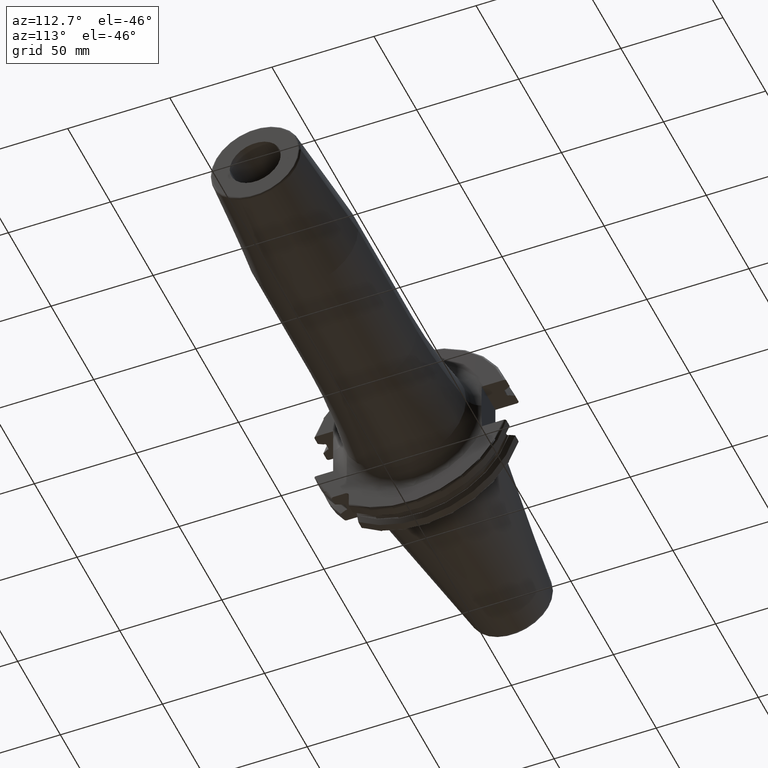
[diagram: clean part render]
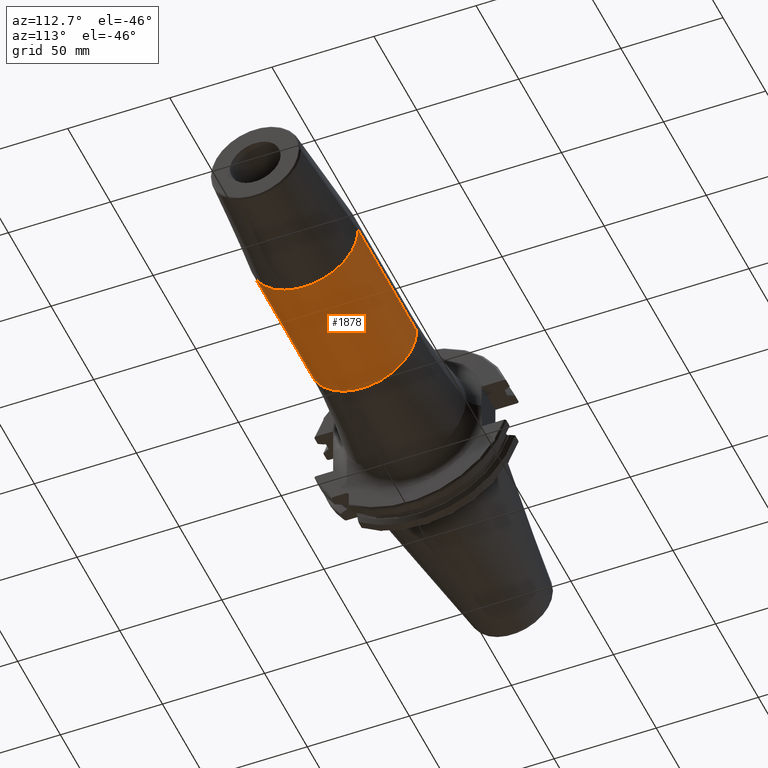
[diagram: same view with one face highlighted and labeled with its STEP entity id]
A machine part, auxiliary view. The second image highlights one B-rep face of the part: STEP entity #1878.
In plain terms, the highlighted cylindrical surface (partial cylindrical patch) has radius 26.5 mm, axis along (1, 0, 0).
Its self-contained STEP definition (entity closure, byte-faithful):
#250=CARTESIAN_POINT('',(7.405E1,0.E0,0.E0));
#251=DIRECTION('',(1.E0,0.E0,0.E0));
#252=DIRECTION('',(0.E0,-1.E0,0.E0));
#253=AXIS2_PLACEMENT_3D('',#250,#251,#252);
#255=DIRECTION('',(-1.E0,0.E0,0.E0));
#256=VECTOR('',#255,6.877207868721E1);
#257=CARTESIAN_POINT('',(1.428220786872E2,-2.65E1,0.E0));
#258=LINE('',#257,#256);
#259=CARTESIAN_POINT('',(1.428220786872E2,0.E0,0.E0));
#260=DIRECTION('',(-1.E0,0.E0,0.E0));
#261=DIRECTION('',(0.E0,1.E0,0.E0));
#262=AXIS2_PLACEMENT_3D('',#259,#260,#261);
#264=DIRECTION('',(-1.E0,0.E0,0.E0));
#265=VECTOR('',#264,6.877207868721E1);
#266=CARTESIAN_POINT('',(1.428220786872E2,2.65E1,0.E0));
#267=LINE('',#266,#265);
#1490=CARTESIAN_POINT('',(1.428220786872E2,2.65E1,0.E0));
#1491=CARTESIAN_POINT('',(1.428220786872E2,-2.65E1,0.E0));
#1492=VERTEX_POINT('',#1490);
#1493=VERTEX_POINT('',#1491);
#1510=CARTESIAN_POINT('',(7.405E1,2.65E1,0.E0));
#1511=CARTESIAN_POINT('',(7.405E1,-2.65E1,0.E0));
#1512=VERTEX_POINT('',#1510);
#1513=VERTEX_POINT('',#1511);
#1864=CARTESIAN_POINT('',(1.00025E1,0.E0,0.E0));
#1865=DIRECTION('',(1.E0,0.E0,0.E0));
#1866=DIRECTION('',(0.E0,-1.E0,0.E0));
#1867=AXIS2_PLACEMENT_3D('',#1864,#1865,#1866);
#1868=CYLINDRICAL_SURFACE('',#1867,2.65E1);
#1869=ORIENTED_EDGE('',*,*,#1858,.F.);
#1871=ORIENTED_EDGE('',*,*,#1870,.F.);
#1873=ORIENTED_EDGE('',*,*,#1872,.F.);
#1875=ORIENTED_EDGE('',*,*,#1874,.T.);
#1876=EDGE_LOOP('',(#1869,#1871,#1873,#1875));
#1877=FACE_OUTER_BOUND('',#1876,.F.);
#1878=ADVANCED_FACE('',(#1877),#1868,.T.);
#254=CIRCLE('',#253,2.65E1);
#263=CIRCLE('',#262,2.65E1);
#1858=EDGE_CURVE('',#1513,#1512,#254,.T.);
#1870=EDGE_CURVE('',#1493,#1513,#258,.T.);
#1872=EDGE_CURVE('',#1492,#1493,#263,.T.);
#1874=EDGE_CURVE('',#1492,#1512,#267,.T.);